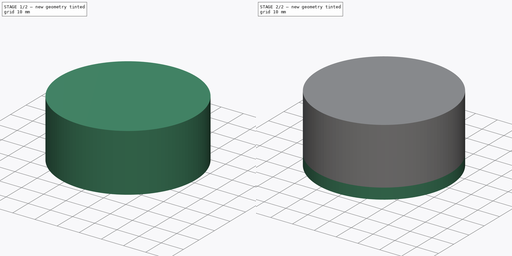
[diagram: build sequence overview — one tinted view per stage of 2, left to right]
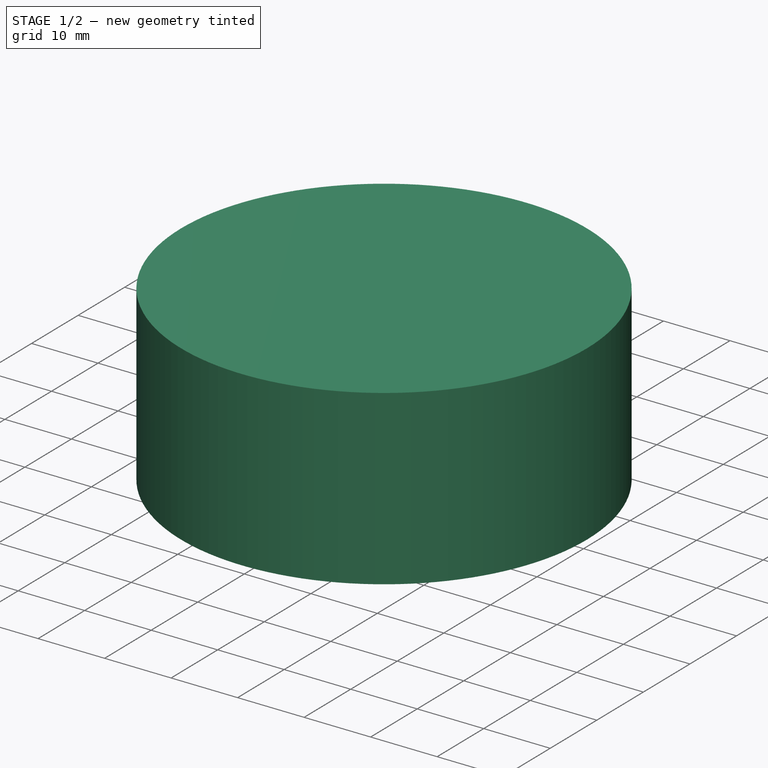
[diagram: stage 1 of 2 — iso view after this stage's code; geometry added in this stage tinted green]
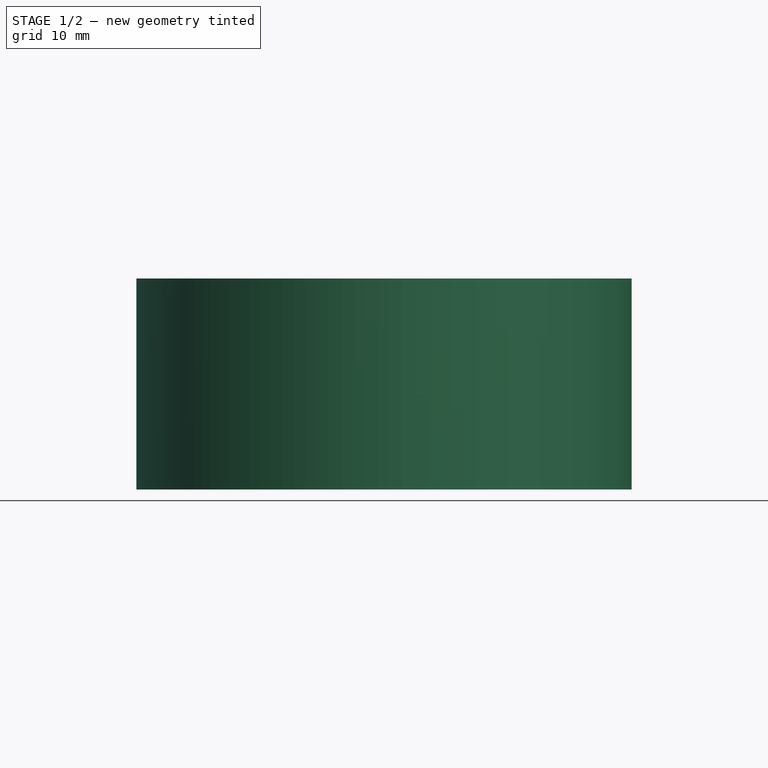
[diagram: stage 1 of 2 — front view after this stage's code; geometry added in this stage tinted green]
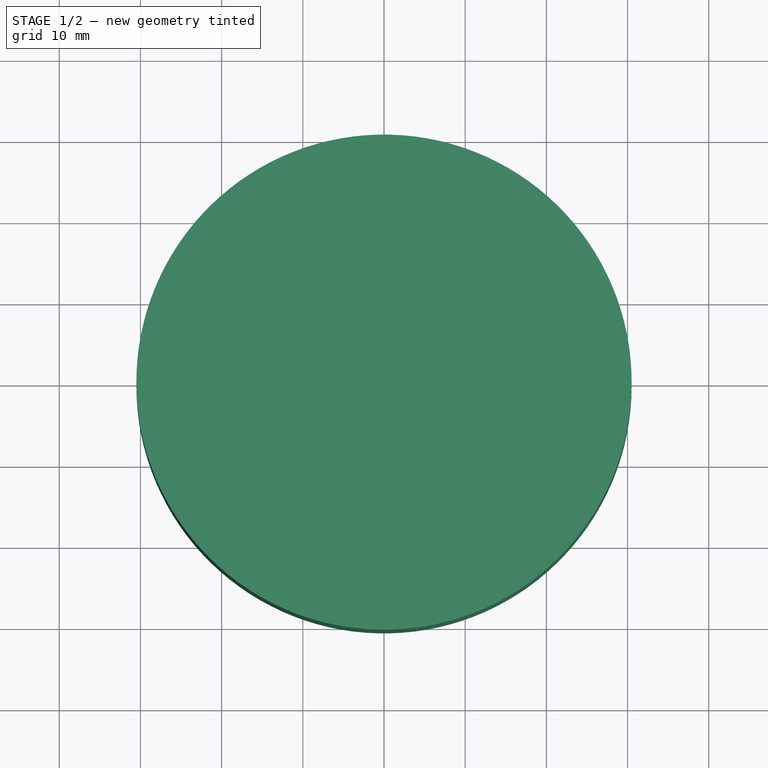
[diagram: stage 1 of 2 — top view after this stage's code; geometry added in this stage tinted green]
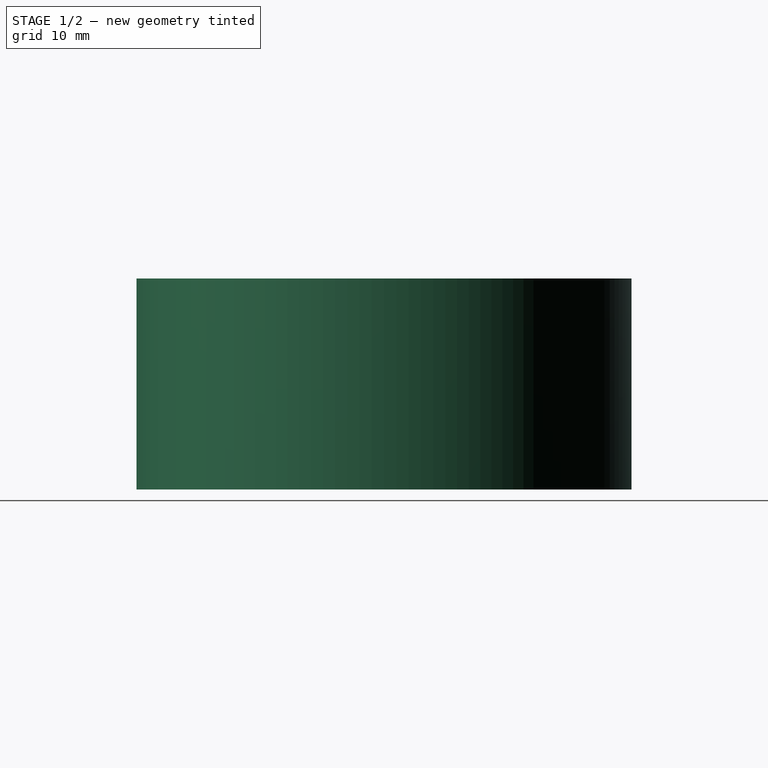
[diagram: stage 1 of 2 — right view after this stage's code; geometry added in this stage tinted green]
FCSTD DOCUMENT  (FreeCAD 0.18R16146 (Git))
Label: Milk_Bottle_Cap
License: All rights reserved
LicenseURL: http://en.wikipedia.org/wiki/All_rights_reserved
objects: Sketcher::SketchObject×3, PartDesign::Revolution×3, PartDesign::Body×3, App::Part×3
note: 12 computed .brp shape members not serialized (recipe doc carries the construction recipe); baked Part::Feature solids carry a one-line shape summary decoded from their .brp

FEATURE [PartDesign::Body] Body
  Group = -> [Sketch,Revolution]
  Origin = -> Origin001
  Tip = -> Revolution
FEATURE [App::Part] Part  label="Base"
  Group = -> [Body]
  Origin = -> Origin
FEATURE [Sketcher::SketchObject] Sketch001
  MapMode = 5
  Placement = pos=(0,0,0) rot=(1,0,0;1.5708rad)
  Support = -> [XZ_Plane003]
  sketch-geometry (6):
    g0: LineSegment StartX=28.7 StartY=6 StartZ=0 EndX=28.7 EndY=5 EndZ=0
    g1: LineSegment StartX=28.7 StartY=5 StartZ=0 EndX=30.5 EndY=5 EndZ=0
    g2: LineSegment StartX=30.5 StartY=5 StartZ=0 EndX=30.5 EndY=27 EndZ=0
    g3: LineSegment StartX=28.7 StartY=6 StartZ=0 EndX=26.7 EndY=6 EndZ=0
    g4: LineSegment StartX=26.7 StartY=6 StartZ=0 EndX=26.7 EndY=27 EndZ=0
    g5: LineSegment StartX=26.7 StartY=27 StartZ=0 EndX=30.5 EndY=27 EndZ=0
  constraints (18):
    c: Vertical(g0)
    c: Coincident(g1,g0)
    c: Horizontal(g1)
    c: Coincident(g2,g1)
    c: Vertical(g2)
    c: Coincident(g3,g0)
    c: Horizontal(g3)
    c: Coincident(g4,g3)
    c: Vertical(g4)
    c: Coincident(g5,g4)
    c: Coincident(g5,g2)
    c: Horizontal(g5)
    c: DistanceX(g1,g1) = 1.8
    c: DistanceX(g3,g3) = 2
    c: DistanceX(g-1,g0) = 28.7
    c: DistanceY(g-1,g0) = 5
    c: DistanceY(g0,g0) = 1
    c: DistanceY(g4,g4) = 21
FEATURE [PartDesign::Revolution] Revolution001
  Angle = 360
  Axis = (0,2e-16,1)
  Base = (0,0,0)
  Placement = pos=(0,0,0) rot=(1,0,0;1.5708rad)
  Profile = -> Sketch001
  ReferenceAxis = -> Sketch001 [V_Axis]
  Reversed = true
FEATURE [PartDesign::Body] Body001
  Group = -> [Sketch001,Revolution001]
  Origin = -> Origin003
  Tip = -> Revolution001
FEATURE [App::Part] Part001  label="Side_Wall"
  Group = -> [Body001]
  Origin = -> Origin002
FEATURE [Sketcher::SketchObject] Sketch002
  MapMode = 5
  Placement = pos=(0,0,0) rot=(1,0,0;1.5708rad)
  Support = -> [XZ_Plane005]
  sketch-geometry (6):
    g0: LineSegment StartX=0 StartY=26 StartZ=0 EndX=26.5 EndY=26 EndZ=0
    g1: LineSegment StartX=26.5 StartY=26 StartZ=0 EndX=26.5 EndY=27 EndZ=0
    g2: LineSegment StartX=26.5 StartY=27 StartZ=0 EndX=30.5 EndY=27 EndZ=0
    g3: LineSegment StartX=30.5 StartY=27 StartZ=0 EndX=30.5 EndY=31 EndZ=0
    g4: LineSegment StartX=30.5 StartY=31 StartZ=0 EndX=0 EndY=31 EndZ=0
    g5: LineSegment StartX=0 StartY=31 StartZ=0 EndX=0 EndY=26 EndZ=0
  constraints (18):
    c: PointOnObject(g0,g-2)
    c: Coincident(g1,g0)
    c: Coincident(g2,g1)
    c: Horizontal(g2)
    c: Coincident(g3,g2)
    c: Vertical(g3)
    c: Coincident(g4,g3)
    c: Horizontal(g4)
    c: Coincident(g5,g4)
    c: Coincident(g5,g0)
    c: Vertical(g5)
    c: Horizontal(g0)
    c: Vertical(g1)
    c: DistanceX(g0,g0) = 26.5
    c: DistanceY(g1,g1) = 1
    c: DistanceX(g2,g2) = 4
    c: DistanceY(g3,g3) = 4
    c: DistanceY(g-1,g2) = 27
FEATURE [PartDesign::Revolution] Revolution002
  Angle = 360
  Axis = (0,2e-16,1)
  Base = (0,0,0)
  Placement = pos=(0,0,0) rot=(1,0,0;1.5708rad)
  Profile = -> Sketch002
  ReferenceAxis = -> Sketch002 [V_Axis]
  Reversed = true
FEATURE [PartDesign::Body] Body002
  Group = -> [Sketch002,Revolution002]
  Origin = -> Origin005
  Tip = -> Revolution002
FEATURE [App::Part] Part002  label="Top"
  Group = -> [Body002]
  Origin = -> Origin004
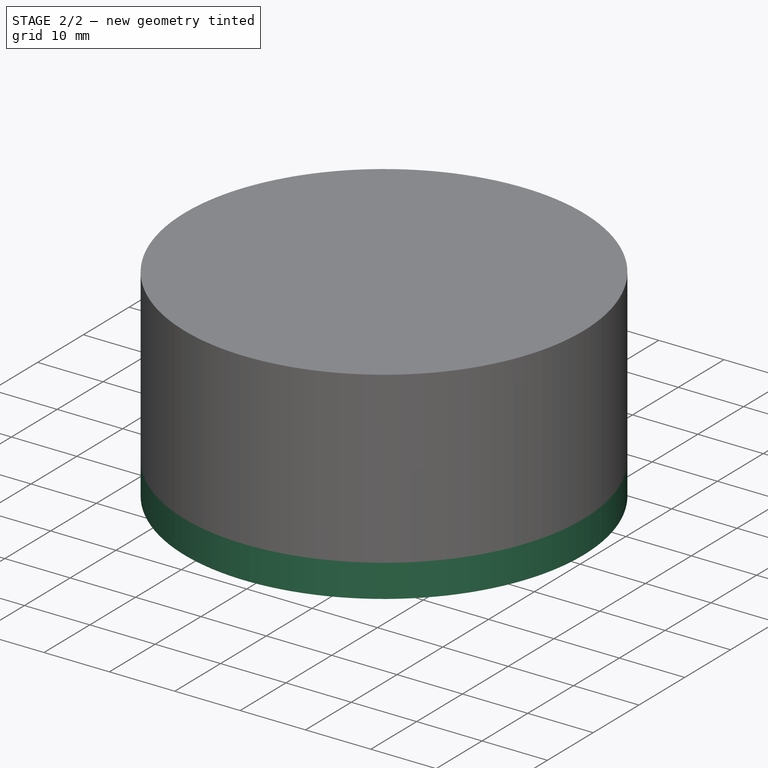
[diagram: stage 2 of 2 — iso view after this stage's code; geometry added in this stage tinted green]
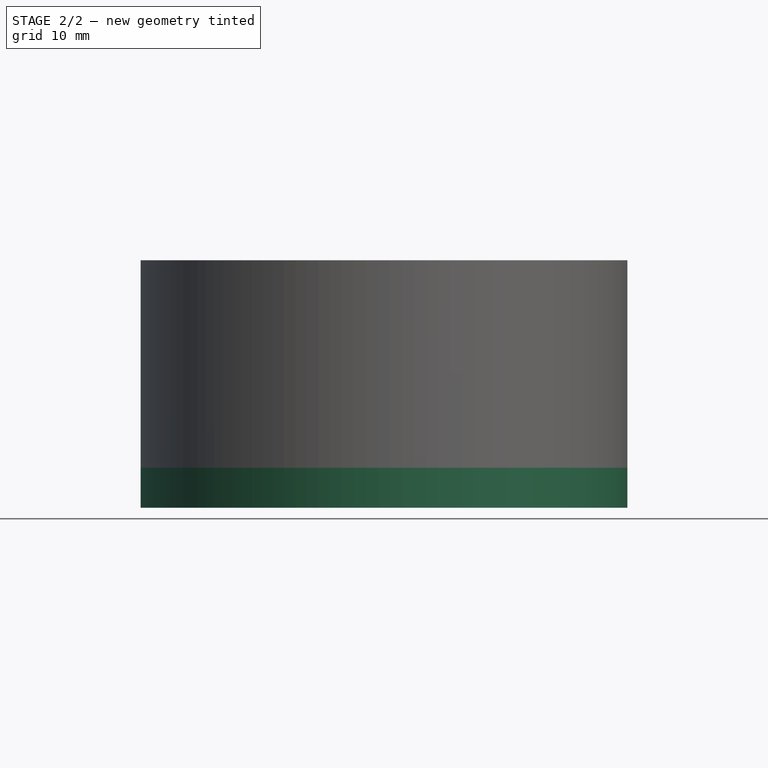
[diagram: stage 2 of 2 — front view after this stage's code; geometry added in this stage tinted green]
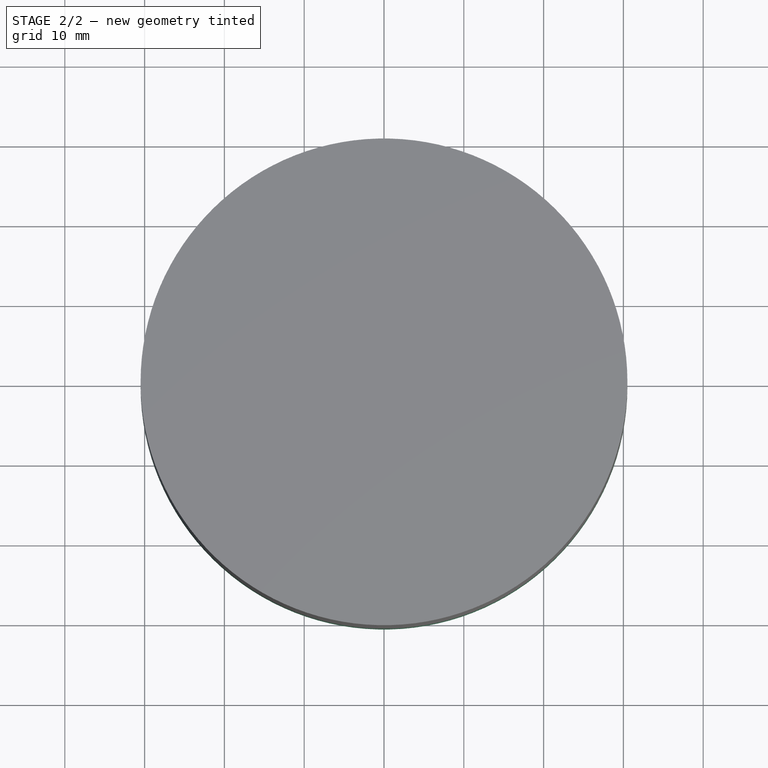
[diagram: stage 2 of 2 — top view after this stage's code; geometry added in this stage tinted green]
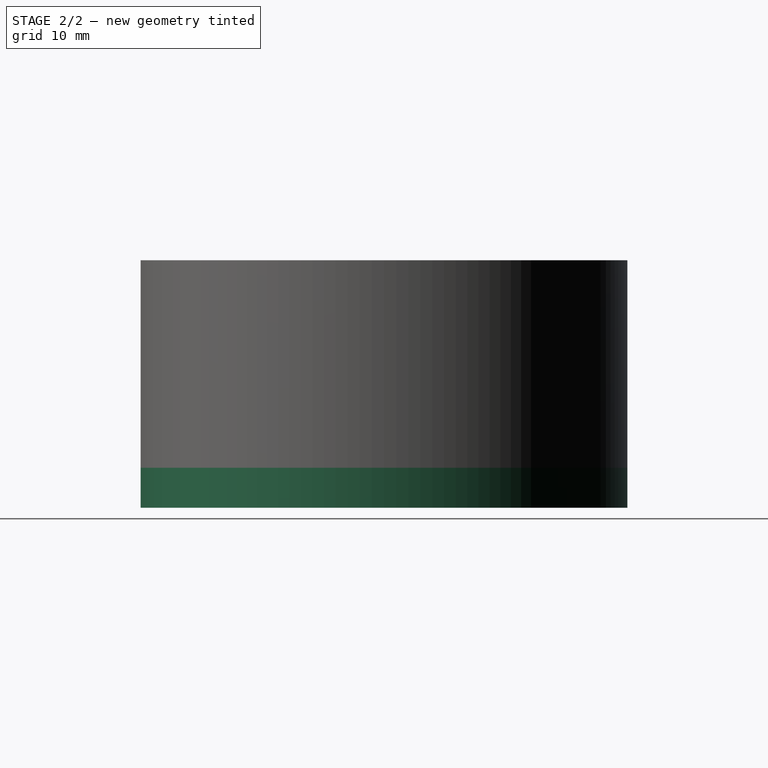
[diagram: stage 2 of 2 — right view after this stage's code; geometry added in this stage tinted green]
FEATURE [Sketcher::SketchObject] Sketch
  MapMode = 5
  Placement = pos=(0,0,0) rot=(1,0,0;1.5708rad)
  Support = -> [XZ_Plane001]
  sketch-geometry (10):
    g0: LineSegment StartX=0 StartY=0 StartZ=0 EndX=0 EndY=21 EndZ=0
    g1: LineSegment StartX=0 StartY=21 StartZ=0 EndX=22.5 EndY=21 EndZ=0
    g2: LineSegment StartX=22.5 StartY=21 StartZ=0 EndX=22.5 EndY=10.1547 EndZ=0
    g3: LineSegment StartX=22.5 StartY=10.1547 StartZ=0 EndX=20.5 EndY=9 EndZ=0
    g4: LineSegment StartX=20.5 StartY=9 StartZ=0 EndX=20.5 EndY=6 EndZ=0
    g5: LineSegment StartX=20.5 StartY=6 StartZ=0 EndX=28.5 EndY=6 EndZ=0
    g6: LineSegment StartX=28.5 StartY=6 StartZ=0 EndX=28.5 EndY=5 EndZ=0
    g7: LineSegment StartX=28.5 StartY=5 StartZ=0 EndX=30.5 EndY=5 EndZ=0
    g8: LineSegment StartX=30.5 StartY=5 StartZ=0 EndX=30.5 EndY=0 EndZ=0
    g9: LineSegment StartX=30.5 StartY=0 StartZ=0 EndX=0 EndY=0 EndZ=0
  constraints (29):
    c: Coincident(g0,g-1)
    c: PointOnObject(g0,g-2)
    c: Horizontal(g1)
    c: Coincident(g2,g1)
    c: Vertical(g2)
    c: Coincident(g3,g2)
    c: Coincident(g4,g3)
    c: Vertical(g4)
    c: Coincident(g5,g4)
    c: Horizontal(g5)
    c: Horizontal(g7)
    c: Coincident(g8,g7)
    c: PointOnObject(g8,g-1)
    c: Vertical(g8)
    c: Coincident(g9,g8)
    c: Coincident(g9,g0)
    c: Coincident(g5,g6)
    c: Vertical(g6)
    c: Coincident(g6,g7)
    c: DistanceX(g0,g4) = 20.5
    c: DistanceX(g0,g2) = 22.5
    c: DistanceY(g4,g4) = 3
    c: DistanceX(g5,g5) = 8
    c: DistanceY(g6,g6) = 1
    c: DistanceY(g8,g8) = 5
    c: Coincident(g0,g1)
    c: DistanceX(g7,g7) = 2
    c: DistanceY(g3,g1) = 12
    c: Angle(g4,g3) = 2.0944
FEATURE [PartDesign::Revolution] Revolution
  Angle = 360
  Axis = (0,2e-16,1)
  Base = (0,0,0)
  Placement = pos=(0,0,0) rot=(1,0,0;1.5708rad)
  Profile = -> Sketch
  ReferenceAxis = -> Sketch [V_Axis]
  Reversed = true
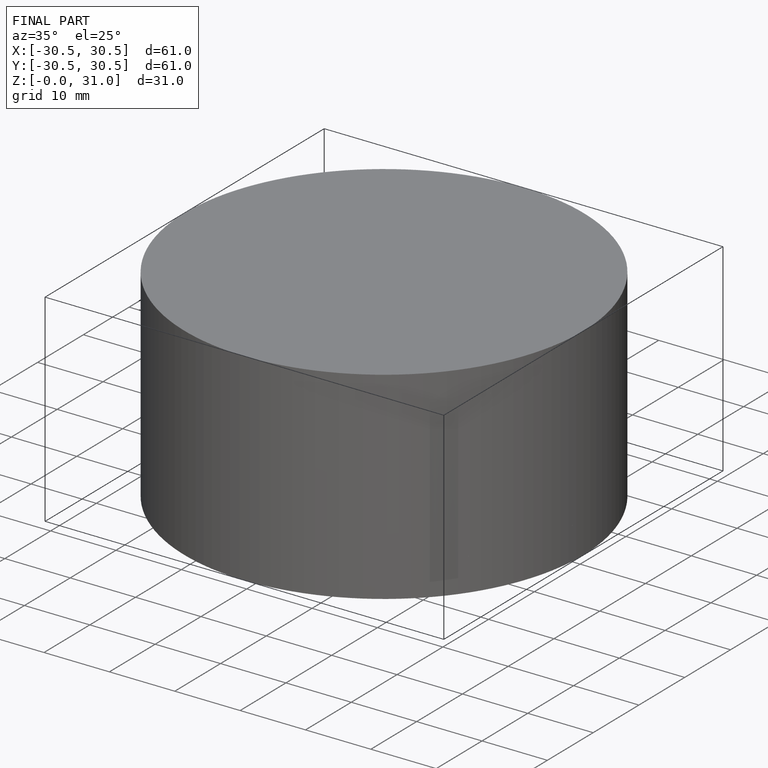
[diagram: finished part — iso view with bounding-box wireframe]
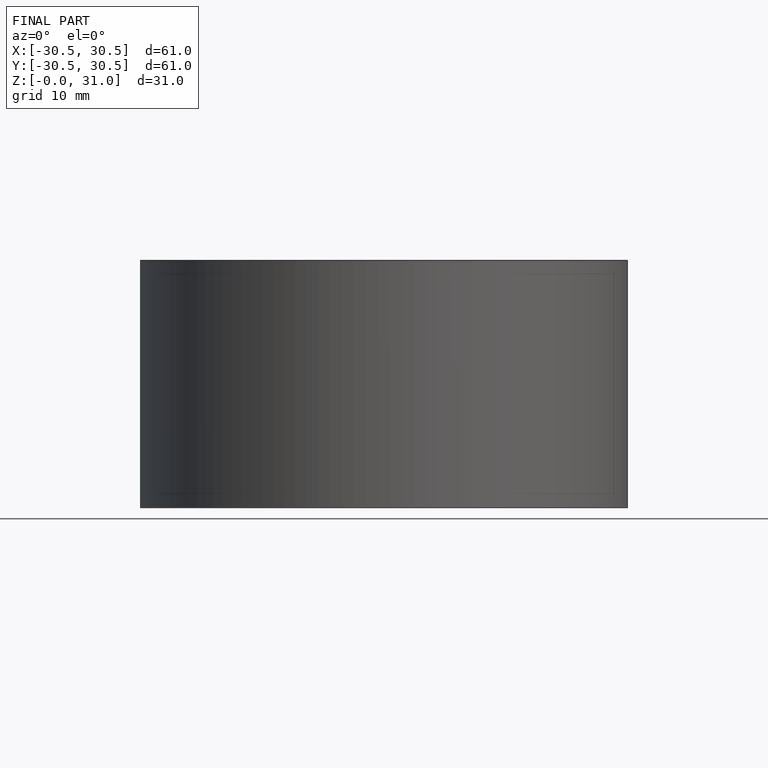
[diagram: finished part — front view with bounding-box wireframe]
